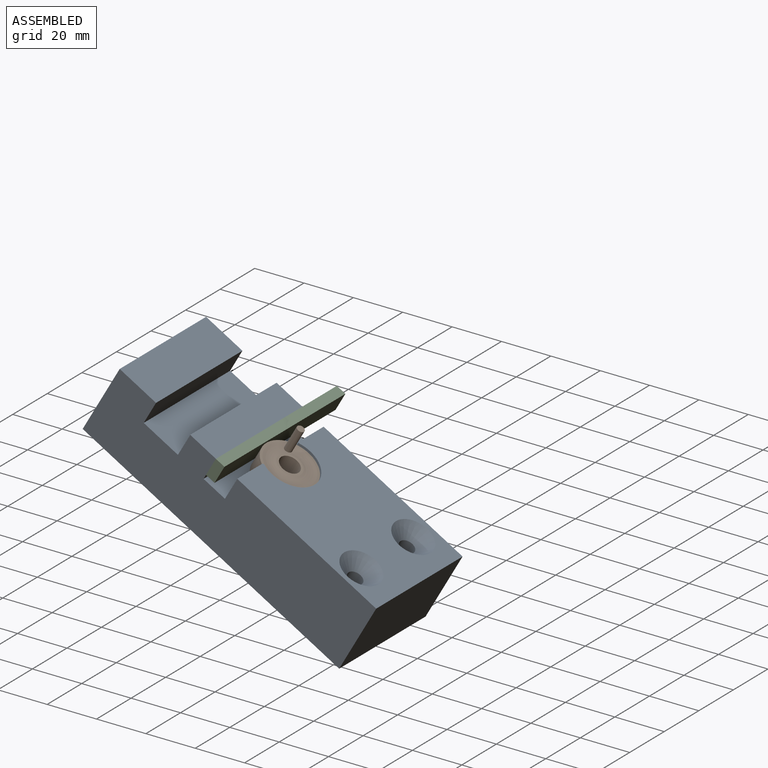
[diagram: assembled view]
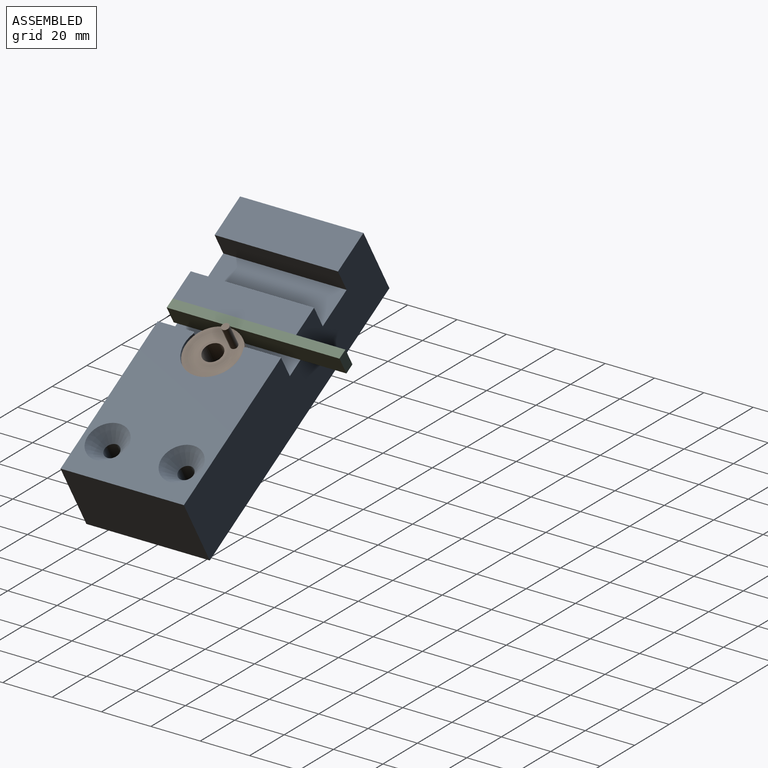
[diagram: assembled view, second angle]
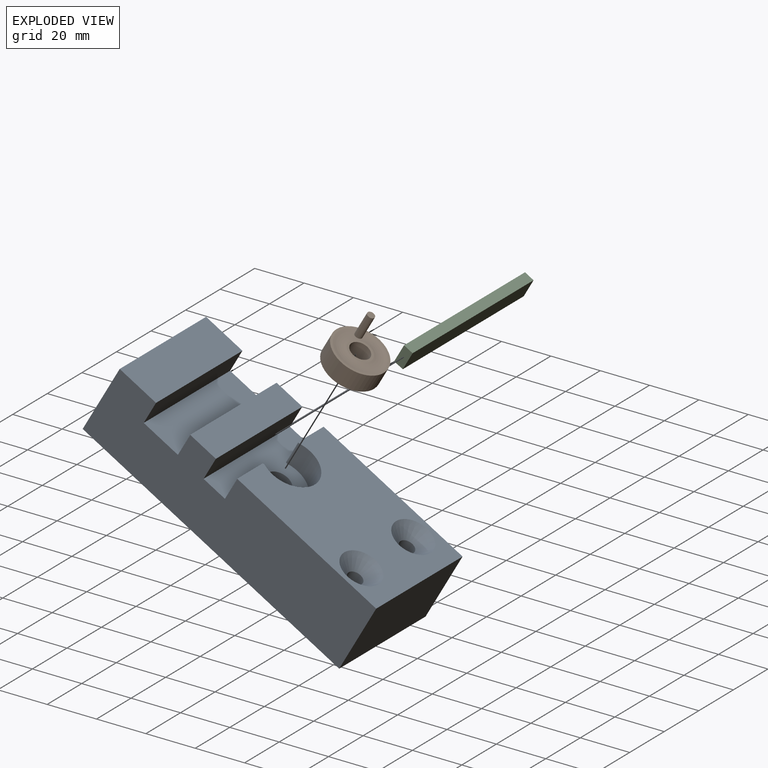
[diagram: exploded view]
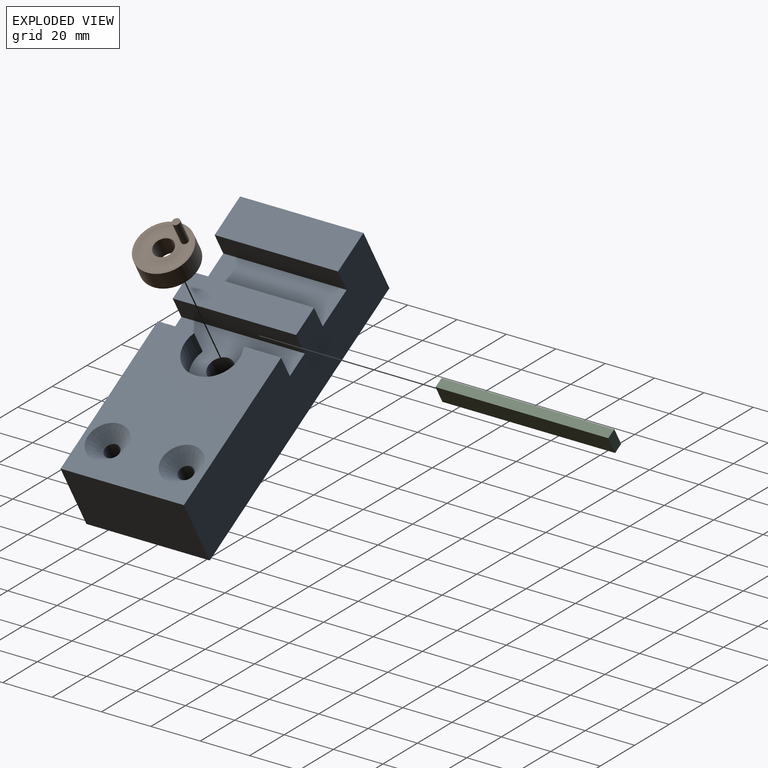
[diagram: exploded view, second angle]
ASSEMBLY  parts=3 mates=2
PART A: 23 faces, bbox 120x50x30 mm
  f0: plane 120x30mm, normal (0,-1,0), area 3340mm2, adj f1,f2,f3,f5,f6,f7,f8,f11
  f1: plane 50x12mm, normal (0,0,1), area 600mm2, adj f0,f4,f11,f14
  f2: plane 65x50mm, normal (0,0,1), area 2551.4mm2, adj f0,f3,f4,f8,f9,f10,f19,f20
  f3: plane 50x30mm, normal (1,0,0), area 1500mm2, adj f0,f2,f4,f7
  f4: plane 120x30mm, normal (0,1,0), area 3340mm2, adj f1,f2,f3,f5,f6,f7,f10,f11
  f5: plane 50x30mm, normal (-1,0,0), area 1500mm2, adj f0,f4,f6,f7
  f6: plane 50x17mm, normal (0,0,1), area 850mm2, adj f0,f4,f5,f13
  f7: plane 120x50mm, normal (0,0,-1), area 5864.9mm2, adj f0,f3,f4,f5,f16,f17,f18
  f8: plane 14.42x10mm, normal (-1,0,0), area 144.2mm2, adj f0,f2,f12,f22
  f9: cylinder r=11mm len=22mm, axis (0,0,1), area 434mm2, adj f2,f12,f21,f22
  f10: plane 14.42x10mm, normal (-1,0,0), area 144.2mm2, adj f2,f4,f12,f21
  f11: plane 50x10mm, normal (1,0,0), area 500mm2, adj f0,f1,f4,f12
  f12: plane 50x26mm, normal (0,0,1), area 717.9mm2, adj f0,f4,f8,f9,f10,f11,f16,f21
  f13: plane 50x10mm, normal (1,0,0), area 500mm2, adj f0,f4,f6,f15
  f14: plane 50x10mm, normal (-1,0,0), area 500mm2, adj f0,f1,f4,f15
  f15: plane 50x16mm, normal (0,0,1), area 800mm2, adj f0,f4,f13,f14
  f16: cylinder r=5mm len=20mm, axis (0,0,1), area 628.3mm2, adj f7,f12
  f17: cylinder r=3mm len=25mm, axis (0,0,1), area 471.2mm2, adj f7,f19
  f18: cylinder r=3mm len=25mm, axis (0,0,1), area 471.2mm2, adj f7,f20
  f19: cone r=3mm half-angle=45deg, axis (0,0,1), area 244.4mm2, adj f2,f17
  f20: cone r=3mm half-angle=45deg, axis (0,0,1), area 244.4mm2, adj f2,f18
  f21: cylinder r=0.5mm len=10mm, axis (0,0,1), area 9.9mm2, adj f2,f9,f10,f12
  f22: cylinder r=0.5mm len=10mm, axis (0,0,1), area 9.9mm2, adj f2,f8,f9,f12
PART B: 12 faces, bbox 22x18x22 mm
  f0: plane 22x22mm, normal (0,1,0), area 66mm2, adj f1,f7
  f1: torus R=7.5mm, axis (0,1,0), area 230.2mm2, adj f0,f2,f10
  f2: plane 10x10mm, normal (0,1,0), area 28.3mm2, adj f1,f3
  f3: cylinder r=4mm len=8mm, axis (0,1,0), area 201.1mm2, adj f2,f4
  f4: plane 10x10mm, normal (0,-1,0), area 28.3mm2, adj f3,f5
  f5: torus R=7.5mm, axis (0,1,0), area 230.2mm2, adj f4,f6,f9
  f6: plane 22x22mm, normal (0,-1,0), area 66mm2, adj f5,f7
  f7: cylinder r=11mm len=22mm, axis (0,1,0), area 552.9mm2, adj f0,f6
  f8: plane 3x3mm, normal (0,-1,0), area 7.1mm2, adj f9
  f9: cylinder r=1.5mm len=3mm, axis (0,-1,0), area 2mm2, adj f5,f8
  f10: cylinder r=1.5mm len=10.26mm, axis (0,-1,0), area 96.3mm2, adj f1,f11
  f11: plane 3x3mm, normal (0,1,0), area 7.1mm2, adj f10
PART C: 6 faces, bbox 4x70x8 mm
  f0: plane 8x4mm, normal (0,1,0), area 32mm2, adj f1,f3,f4,f5
  f1: plane 70x4mm, normal (0,0,1), area 280mm2, adj f0,f2,f4,f5
  f2: plane 8x4mm, normal (0,-1,0), area 32mm2, adj f1,f3,f4,f5
  f3: plane 70x4mm, normal (0,0,-1), area 280mm2, adj f0,f2,f4,f5
  f4: plane 70x8mm, normal (1,0,0), area 560mm2, adj f0,f1,f2,f3
  f5: plane 70x8mm, normal (-1,0,0), area 560mm2, adj f0,f1,f2,f3
PLACE A rot(axis=(0,1,0),30deg) t=(14.34,-0.72,21.23)mm fixed
PLACE B rot(axis=(-0.19,-0.69,-0.69),158.9deg) t=(114.32,-0.72,35.64)mm
PLACE C rot(axis=(-0.26,0,-0.97),180deg) t=(-16.44,4.68,-10.08)mm
MATE revolute A.f9 <-> B.f1  axis (0.5,0,0.87) through (26.84,-0.72,42.88)mm
MATE slider C.f0 <-> A.f0  axis (0,-1,0) through (16.35,-25.72,54.71)mm
